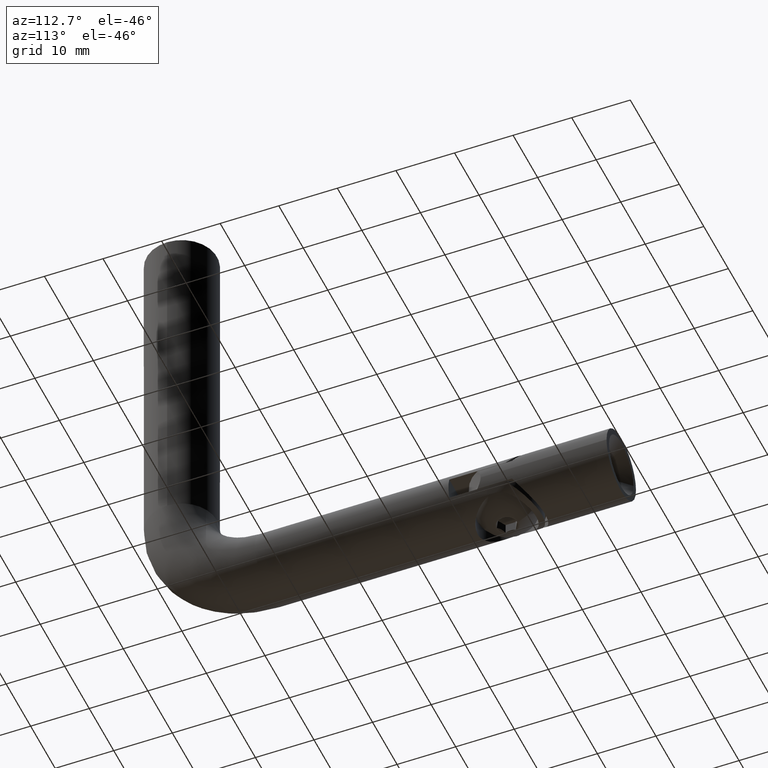
[diagram: clean part render]
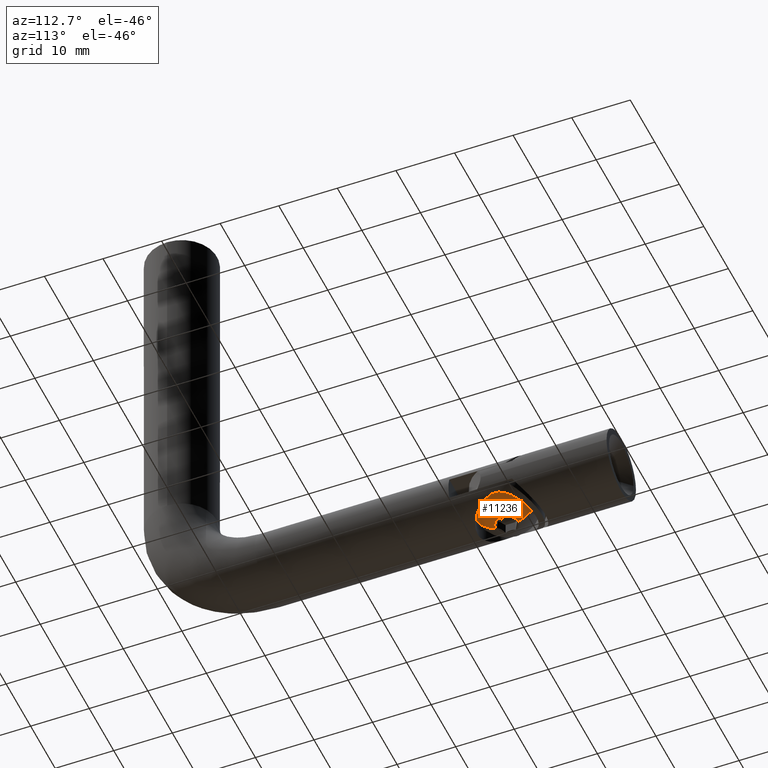
[diagram: same view with one face highlighted and labeled with its STEP entity id]
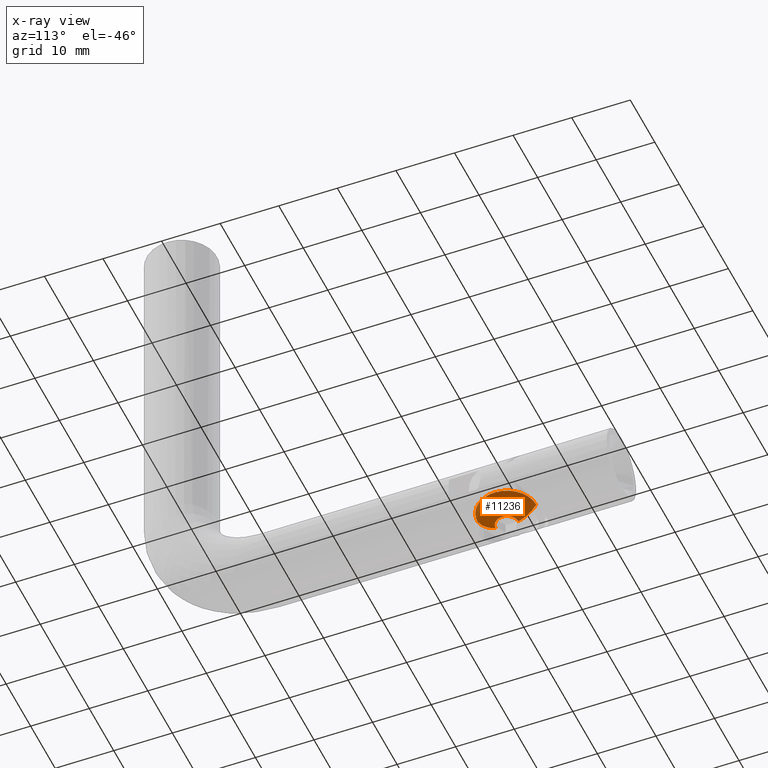
[diagram: x-ray of the same camera — body ghosted, the highlighted face saturated]
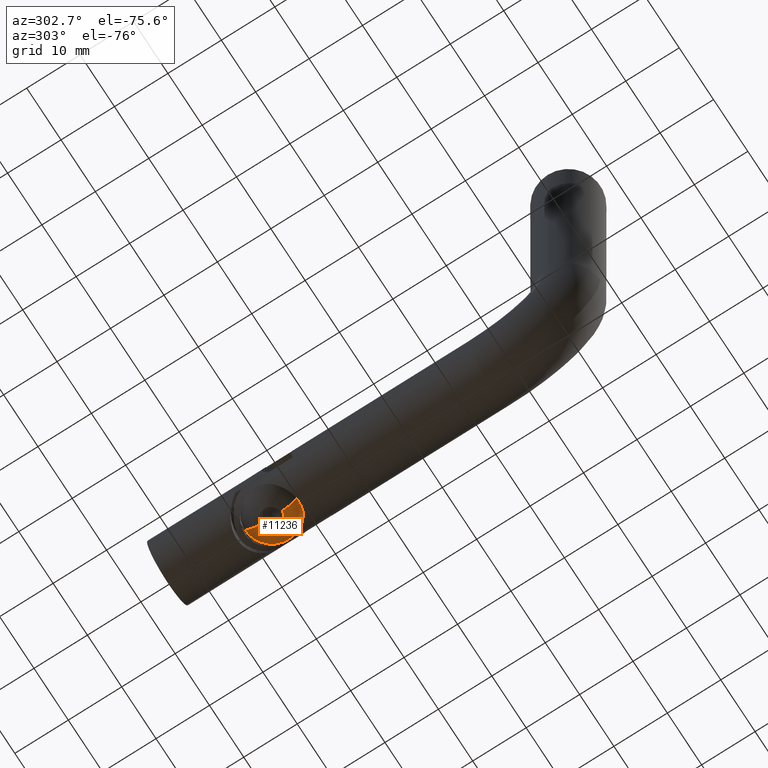
[diagram: same view with one face highlighted and labeled with its STEP entity id]
A machine part, auxiliary view. The second image highlights one B-rep face of the part: STEP entity #11236.
The next image is the same camera in x-ray: the body ghosted, the highlighted face saturated — about 0% of this face is hidden behind the body in this view.
A second angle (auxiliary view) of the same face is appended — the face is thin or edge-on in the first view.
In plain terms, the highlighted spherical surface has radius 5.7263 mm.
Its self-contained STEP definition (entity closure, byte-faithful):
#13 = CARTESIAN_POINT ( 'NONE',  ( 6.123233995736766282E-16, 2.599050000000005411, 4.999999999999999112 ) ) ;
#413 = EDGE_CURVE ( 'NONE', #16384, #2829, #1012, .T. ) ;
#589 = CARTESIAN_POINT ( 'NONE',  ( -5.000000000000008882, 2.599050000000005411, 4.081770351527293874E-15 ) ) ;
#616 = CARTESIAN_POINT ( 'NONE',  ( 0.000000000000000000, 2.599050000000005411, 0.000000000000000000 ) ) ;
#804 = CIRCLE ( 'NONE', #11390, 5.726279027176234493 ) ;
#1012 = CIRCLE ( 'NONE', #5629, 5.000000000000012434 ) ;
#1639 = ORIENTED_EDGE ( 'NONE', *, *, #16697, .F. ) ;
#1942 = ORIENTED_EDGE ( 'NONE', *, *, #413, .T. ) ;
#2298 = DIRECTION ( 'NONE',  ( -2.465190328815656965E-32, 0.000000000000000000, -1.000000000000000000 ) ) ;
#2829 = VERTEX_POINT ( 'NONE', #13 ) ;
#2859 = DIRECTION ( 'NONE',  ( 1.000000000000000000, 0.000000000000000000, -1.224646799147353454E-16 ) ) ;
#2925 = DIRECTION ( 'NONE',  ( 1.224646799147353454E-16, 8.874685183736382811E-31, 1.000000000000000000 ) ) ;
#3051 = CIRCLE ( 'NONE', #14081, 5.000000000000012434 ) ;
#3399 = DIRECTION ( 'NONE',  ( -2.465190328815656965E-32, 0.000000000000000000, -1.000000000000000000 ) ) ;
#4152 = AXIS2_PLACEMENT_3D ( 'NONE', #7004, #13747, #12452 ) ;
#4411 = AXIS2_PLACEMENT_3D ( 'NONE', #10271, #14292, #13001 ) ;
#4886 = CARTESIAN_POINT ( 'NONE',  ( 5.000000000000013323, 2.599050000000005411, 3.469446951953616555E-15 ) ) ;
#5557 = VERTEX_POINT ( 'NONE', #15298 ) ;
#5629 = AXIS2_PLACEMENT_3D ( 'NONE', #14321, #17159, #2298 ) ;
#5945 = DIRECTION ( 'NONE',  ( -2.465190328815654502E-32, -8.874685183736382811E-31, -1.000000000000000000 ) ) ;
#5991 = AXIS2_PLACEMENT_3D ( 'NONE', #10233, #5945, #12723 ) ;
#6094 = EDGE_CURVE ( 'NONE', #2829, #7775, #3051, .T. ) ;
#6265 = FACE_OUTER_BOUND ( 'NONE', #13744, .T. ) ;
#7004 = CARTESIAN_POINT ( 'NONE',  ( 0.000000000000000000, 5.390155783928374689, 3.469446951953614189E-15 ) ) ;
#7775 = VERTEX_POINT ( 'NONE', #589 ) ;
#7890 = CARTESIAN_POINT ( 'NONE',  ( 0.000000000000000000, 5.390155783928374689, 3.469446951953614189E-15 ) ) ;
#9776 = EDGE_CURVE ( 'NONE', #7775, #17051, #804, .T. ) ;
#9914 = DIRECTION ( 'NONE',  ( 5.412770265250863844E-32, -1.000000000000000000, 8.874685183736382811E-31 ) ) ;
#10233 = CARTESIAN_POINT ( 'NONE',  ( 0.000000000000000000, 5.390155783928374689, 3.469446951953614189E-15 ) ) ;
#10271 = CARTESIAN_POINT ( 'NONE',  ( 0.000000000000000000, 0.000000000000000000, 0.000000000000000000 ) ) ;
#10783 = CIRCLE ( 'NONE', #4411, 1.933000807568879598 ) ;
#11156 = CARTESIAN_POINT ( 'NONE',  ( -1.933000807568874491, 0.000000000000000000, 3.893970814327359110E-15 ) ) ;
#11236 = ADVANCED_FACE ( 'NONE', ( #6265 ), #14488, .T. ) ;
#11370 = ORIENTED_EDGE ( 'NONE', *, *, #17267, .F. ) ;
#11390 = AXIS2_PLACEMENT_3D ( 'NONE', #7890, #2925, #2859 ) ;
#12452 = DIRECTION ( 'NONE',  ( 1.000000000000000000, 0.000000000000000000, 0.000000000000000000 ) ) ;
#12723 = DIRECTION ( 'NONE',  ( 0.000000000000000000, 1.000000000000000000, -8.744627762011260009E-31 ) ) ;
#13001 = DIRECTION ( 'NONE',  ( -2.465190328815656965E-32, 9.367723249499490667E-31, -1.000000000000000000 ) ) ;
#13744 = EDGE_LOOP ( 'NONE', ( #1942, #15582, #17040, #11370, #1639 ) ) ;
#13747 = DIRECTION ( 'NONE',  ( -0.000000000000000000, 8.874685183736382811E-31, 1.000000000000000000 ) ) ;
#14081 = AXIS2_PLACEMENT_3D ( 'NONE', #616, #9914, #3399 ) ;
#14292 = DIRECTION ( 'NONE',  ( 5.412770265250863844E-32, -1.000000000000000000, 8.874685183736382811E-31 ) ) ;
#14321 = CARTESIAN_POINT ( 'NONE',  ( 0.000000000000000000, 2.599050000000005411, 0.000000000000000000 ) ) ;
#14488 = SPHERICAL_SURFACE ( 'NONE', #4152, 5.726279027176234493 ) ;
#15298 = CARTESIAN_POINT ( 'NONE',  ( 1.933000807568874491, 0.000000000000000000, 3.469446951953597623E-15 ) ) ;
#15582 = ORIENTED_EDGE ( 'NONE', *, *, #6094, .T. ) ;
#16384 = VERTEX_POINT ( 'NONE', #4886 ) ;
#16697 = EDGE_CURVE ( 'NONE', #16384, #5557, #17133, .T. ) ;
#17040 = ORIENTED_EDGE ( 'NONE', *, *, #9776, .T. ) ;
#17051 = VERTEX_POINT ( 'NONE', #11156 ) ;
#17133 = CIRCLE ( 'NONE', #5991, 5.726279027176234493 ) ;
#17159 = DIRECTION ( 'NONE',  ( 5.412770265250863844E-32, -1.000000000000000000, 8.874685183736382811E-31 ) ) ;
#17267 = EDGE_CURVE ( 'NONE', #5557, #17051, #10783, .T. ) ;